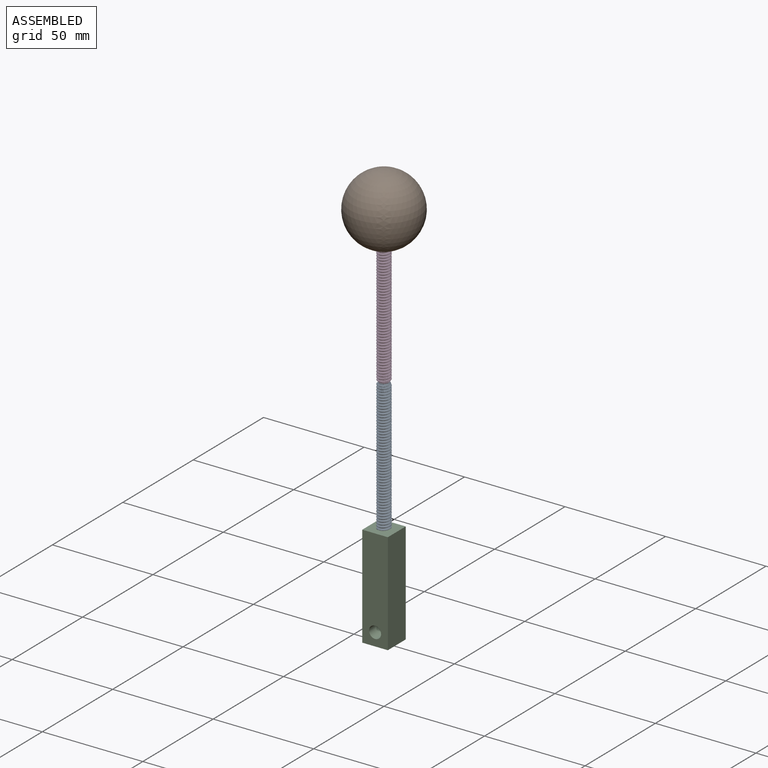
[diagram: assembled view]
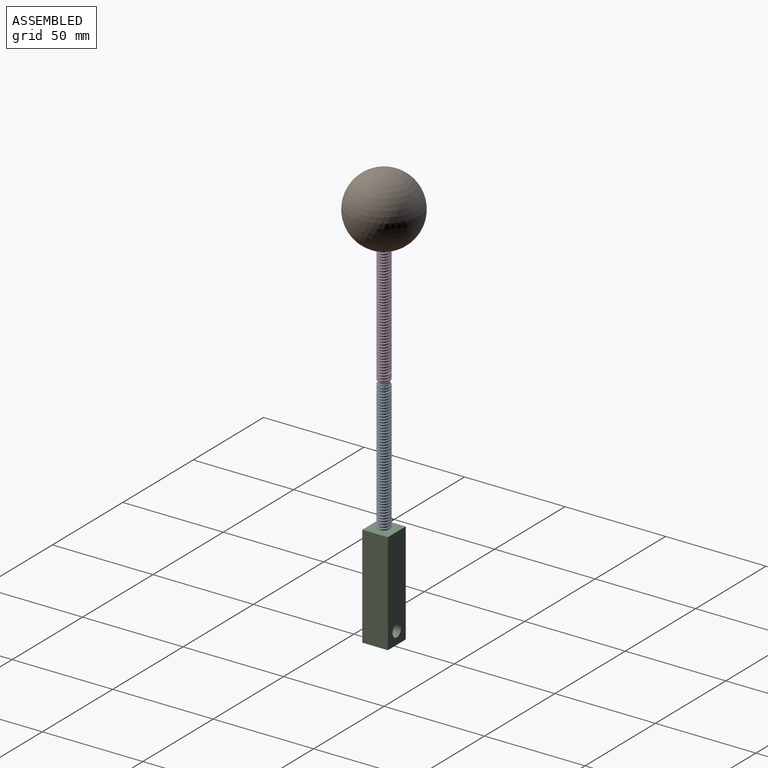
[diagram: assembled view, second angle]
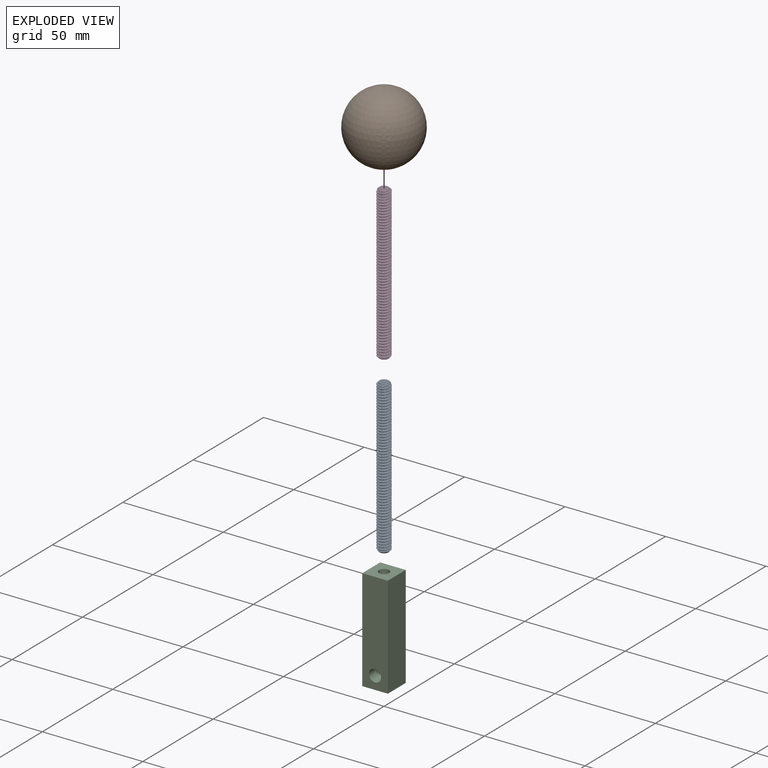
[diagram: exploded view]
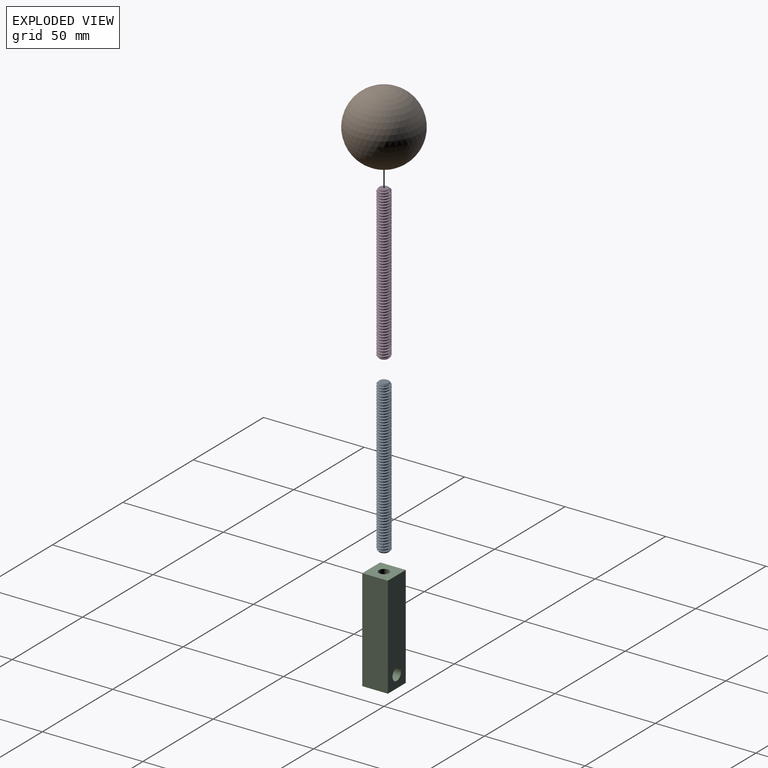
[diagram: exploded view, second angle]
ASSEMBLY  parts=4 mates=3
PART A: 9 faces, bbox 77.2x7.5x6.5 mm
  f0: cone r=3.17mm half-angle=45deg, axis (1,0,0), area 11.7mm2, adj f1,f4,f6,f7,f8
  f1: cone r=3.17mm half-angle=45deg, axis (1,0,0), area 0.6mm2, adj f0,f3,f6
  f2: cone r=2.22mm half-angle=45deg, axis (-1,0,0), area 12.3mm2, adj f3,f5,f6,f7,f8
  f3: cylinder r=3.17mm len=74.3mm, axis (1,0,0), area 907.7mm2, adj f1,f2,f6,f8
  f4: plane 4.45x4.45mm, normal (-1,0,0), area 15.5mm2, adj f0
  f5: plane 4.45x4.45mm, normal (1,0,0), area 15.5mm2, adj f2
  f6: bspline ~76.72x7.49mm, area 979.9mm2, adj f0,f1,f2,f3,f7
  f7: cylinder r=2.35mm len=75.94mm, axis (-1,0,0), area 839.7mm2, adj f0,f2,f6,f8
  f8: bspline ~76.72x7.49mm, area 979.3mm2, adj f0,f2,f3,f7
PART B: 57 faces, bbox 35x34.9x35 mm
  f0: sphere r=17.46mm, area 3800mm2, adj f14,f15,f56
  f1: cylinder r=3.17mm len=6.35mm, axis (0,-1,0), area 3mm2, adj f2,f54,f55
  f2: plane 6.46x5.41mm, normal (0,-1,0), area 25.7mm2, adj f1,f52,f54,f55
  f3: cylinder r=3.17mm len=6.35mm, axis (0,-1,0), area 6.7mm2, adj f50,f53
  f4: cylinder r=3.17mm len=6.35mm, axis (0,-1,0), area 6.7mm2, adj f47,f49
  f5: cylinder r=3.17mm len=6.35mm, axis (0,-1,0), area 6.7mm2, adj f44,f46
  f6: cylinder r=3.17mm len=6.35mm, axis (0,-1,0), area 6.7mm2, adj f41,f43
  f7: cylinder r=3.17mm len=6.35mm, axis (0,-1,0), area 6.7mm2, adj f38,f40
  f8: cylinder r=3.17mm len=6.35mm, axis (0,-1,0), area 6.7mm2, adj f35,f37
  f9: cylinder r=3.17mm len=6.35mm, axis (0,-1,0), area 6.7mm2, adj f32,f34
  f10: cylinder r=3.17mm len=6.35mm, axis (0,-1,0), area 6.7mm2, adj f29,f31
  f11: cylinder r=3.17mm len=6.35mm, axis (0,-1,0), area 6.7mm2, adj f26,f28
  f12: cylinder r=3.17mm len=6.35mm, axis (0,-1,0), area 6.7mm2, adj f23,f25
  f13: cylinder r=3.17mm len=6.35mm, axis (0,-1,0), area 6.7mm2, adj f17,f22
  f14: cylinder r=3.17mm len=5.39mm, axis (0,-1,0), area 1.3mm2, adj f0,f19
  f15: cylinder r=3.17mm len=6.35mm, axis (0,-1,0), area 6.4mm2, adj f0,f16,f21
  f16: cone r=3.38mm half-angle=60deg, axis (0,-0.98,-0.2), area 11.1mm2, adj f15,f18
  f17: cone r=2.69mm half-angle=60deg, axis (0,0.98,0.2), area 11.1mm2, adj f13,f18
  f18: cylinder r=2.69mm len=5.39mm, axis (0,-0.98,-0.2), area 5.4mm2, adj f16,f17
  f19: cone r=3.38mm half-angle=60deg, axis (0,-0.98,-0.2), area 2mm2, adj f14,f56
  f20: cylinder r=2.69mm len=4.69mm, axis (0,-0.98,-0.2), area 1mm2, adj f21,f56
  f21: cone r=2.69mm half-angle=60deg, axis (0,0.98,0.2), area 7.2mm2, adj f15,f20,f56
  f22: cone r=3.38mm half-angle=60deg, axis (0,-0.98,-0.2), area 11.1mm2, adj f13,f24
  f23: cone r=2.69mm half-angle=60deg, axis (0,0.98,0.2), area 11.1mm2, adj f12,f24
  f24: cylinder r=2.69mm len=5.39mm, axis (0,-0.98,-0.2), area 5.4mm2, adj f22,f23
  f25: cone r=3.38mm half-angle=60deg, axis (0,-0.98,-0.2), area 11.1mm2, adj f12,f27
  f26: cone r=2.69mm half-angle=60deg, axis (0,0.98,0.2), area 11.1mm2, adj f11,f27
  f27: cylinder r=2.69mm len=5.39mm, axis (0,-0.98,-0.2), area 5.4mm2, adj f25,f26
  f28: cone r=3.38mm half-angle=60deg, axis (0,-0.98,-0.2), area 11.1mm2, adj f11,f30
  f29: cone r=2.69mm half-angle=60deg, axis (0,0.98,0.2), area 11.1mm2, adj f10,f30
  f30: cylinder r=2.69mm len=5.39mm, axis (0,-0.98,-0.2), area 5.4mm2, adj f28,f29
  f31: cone r=3.38mm half-angle=60deg, axis (0,-0.98,-0.2), area 11.1mm2, adj f10,f33
  f32: cone r=2.69mm half-angle=60deg, axis (0,0.98,0.2), area 11.1mm2, adj f9,f33
  f33: cylinder r=2.69mm len=5.39mm, axis (0,-0.98,-0.2), area 5.4mm2, adj f31,f32
  f34: cone r=3.38mm half-angle=60deg, axis (0,-0.98,-0.2), area 11.1mm2, adj f9,f36
  f35: cone r=2.69mm half-angle=60deg, axis (0,0.98,0.2), area 11.1mm2, adj f8,f36
  f36: cylinder r=2.69mm len=5.39mm, axis (0,-0.98,-0.2), area 5.4mm2, adj f34,f35
  f37: cone r=3.38mm half-angle=60deg, axis (0,-0.98,-0.2), area 11.1mm2, adj f8,f39
  f38: cone r=2.69mm half-angle=60deg, axis (0,0.98,0.2), area 11.1mm2, adj f7,f39
  f39: cylinder r=2.69mm len=5.39mm, axis (0,-0.98,-0.2), area 5.4mm2, adj f37,f38
  f40: cone r=3.38mm half-angle=60deg, axis (0,-0.98,-0.2), area 11.1mm2, adj f7,f42
  f41: cone r=2.69mm half-angle=60deg, axis (0,0.98,0.2), area 11.1mm2, adj f6,f42
  f42: cylinder r=2.69mm len=5.39mm, axis (0,-0.98,-0.2), area 5.4mm2, adj f40,f41
  f43: cone r=3.38mm half-angle=60deg, axis (0,-0.98,-0.2), area 11.1mm2, adj f6,f45
  f44: cone r=2.69mm half-angle=60deg, axis (0,0.98,0.2), area 11.1mm2, adj f5,f45
  f45: cylinder r=2.69mm len=5.39mm, axis (0,-0.98,-0.2), area 5.4mm2, adj f43,f44
  f46: cone r=3.38mm half-angle=60deg, axis (0,-0.98,-0.2), area 11.1mm2, adj f5,f48
  f47: cone r=2.69mm half-angle=60deg, axis (0,0.98,0.2), area 11.1mm2, adj f4,f48
  f48: cylinder r=2.69mm len=5.39mm, axis (0,-0.98,-0.2), area 5.4mm2, adj f46,f47
  f49: cone r=3.38mm half-angle=60deg, axis (0,-0.98,-0.2), area 11.1mm2, adj f4,f51
  f50: cone r=2.69mm half-angle=60deg, axis (0,0.98,0.2), area 11.1mm2, adj f3,f51
  f51: cylinder r=2.69mm len=5.39mm, axis (0,-0.98,-0.2), area 5.4mm2, adj f49,f50
  f52: cylinder r=2.69mm len=5.39mm, axis (0,-0.98,-0.2), area 5.1mm2, adj f2,f53,f54
  f53: cone r=3.38mm half-angle=60deg, axis (0,-0.98,-0.2), area 11.1mm2, adj f3,f52
  f54: cone r=2.69mm half-angle=60deg, axis (0,0.98,0.2), area 6.9mm2, adj f1,f2,f52
  f55: cone r=3.38mm half-angle=60deg, axis (0,-0.98,-0.2), area 3.1mm2, adj f1,f2
  f56: cone r=2.61mm half-angle=45deg, axis (0,-1,0), area 5mm2, adj f0,f19,f20,f21
PART C: 10 faces, bbox 12.7x12.7x50.8 mm
  f0: cylinder r=3mm len=12.7mm, axis (0,-1,0), area 234.4mm2, adj f2,f4,f7
  f1: plane 50.8x12.7mm, normal (1,0,0), area 645.2mm2, adj f2,f4,f5,f6
  f2: plane 50.8x12.7mm, normal (0,1,0), area 616.9mm2, adj f0,f1,f3,f5,f6
  f3: plane 50.8x12.7mm, normal (-1,0,0), area 645.2mm2, adj f2,f4,f5,f6
  f4: plane 50.8x12.7mm, normal (0,-1,0), area 616.9mm2, adj f0,f1,f3,f5,f6
  f5: plane 12.7x12.7mm, normal (0,0,1), area 140.8mm2, adj f1,f2,f3,f4,f9
  f6: plane 12.7x12.7mm, normal (0,0,-1), area 156.4mm2, adj f1,f2,f3,f4,f7
  f7: cylinder r=1.25mm len=3.62mm, axis (0,0,-1), area 27.4mm2, adj f0,f6
  f8: cone r=0mm half-angle=59deg, axis (0,0,1), area 23.9mm2, adj f9
  f9: cylinder r=2.55mm len=10.31mm, axis (0,0,1), area 165.4mm2, adj f5,f8
PART D: same geometry as A
PLACE A rot(axis=(0.71,0,-0.71),180deg) t=(0,0,72.24)mm
PLACE B rot(axis=(1,0,0),90deg) t=(0,0,178.6)mm
PLACE C t=(0,0,-6.35)mm
PLACE D rot(axis=(0,1,0),90deg) t=(0,0,148.44)mm
MATE fastened A.f0 <-> D.f0  axis (0,0,1) through (0,0,110.34)mm
MATE fastened A.f0 <-> C.f7  axis (0,0,-1) through (0,0,34.14)mm
MATE fastened B.f1 <-> D.f0  axis (0,0,-1) through (0,0,186.54)mm
